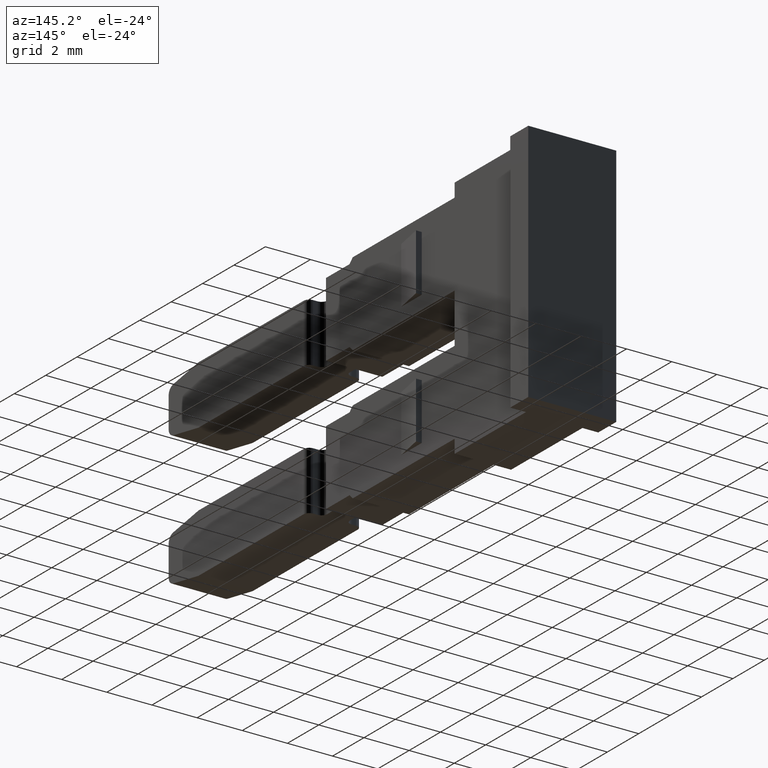
[diagram: clean part render]
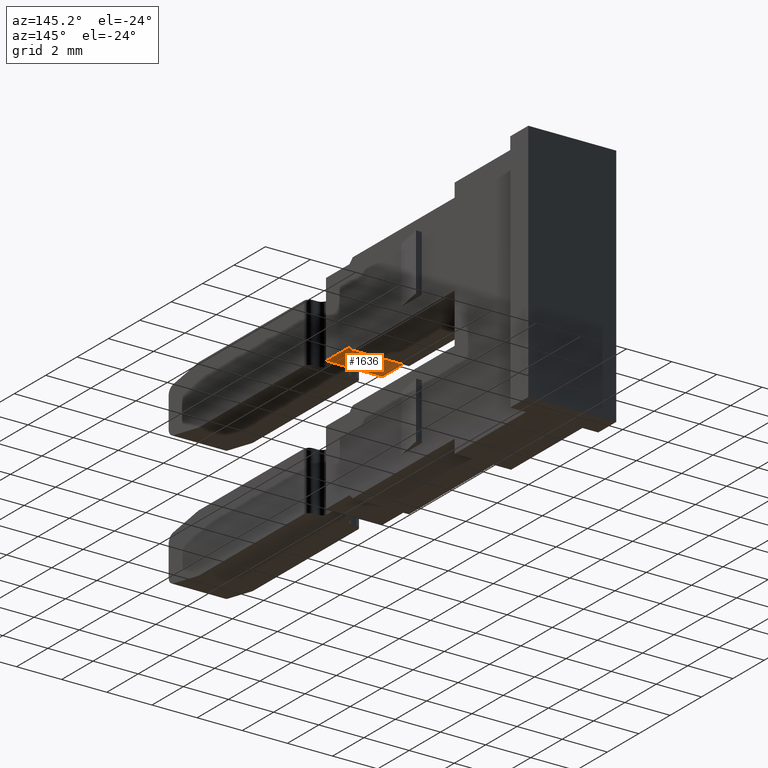
[diagram: same view with one face highlighted and labeled with its STEP entity id]
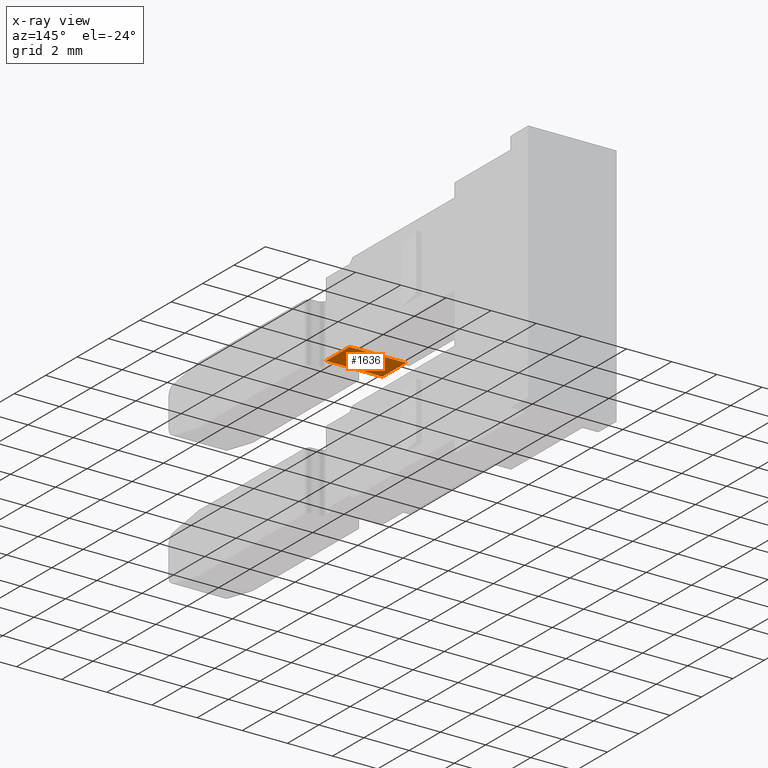
[diagram: x-ray of the same camera — body ghosted, the highlighted face saturated]
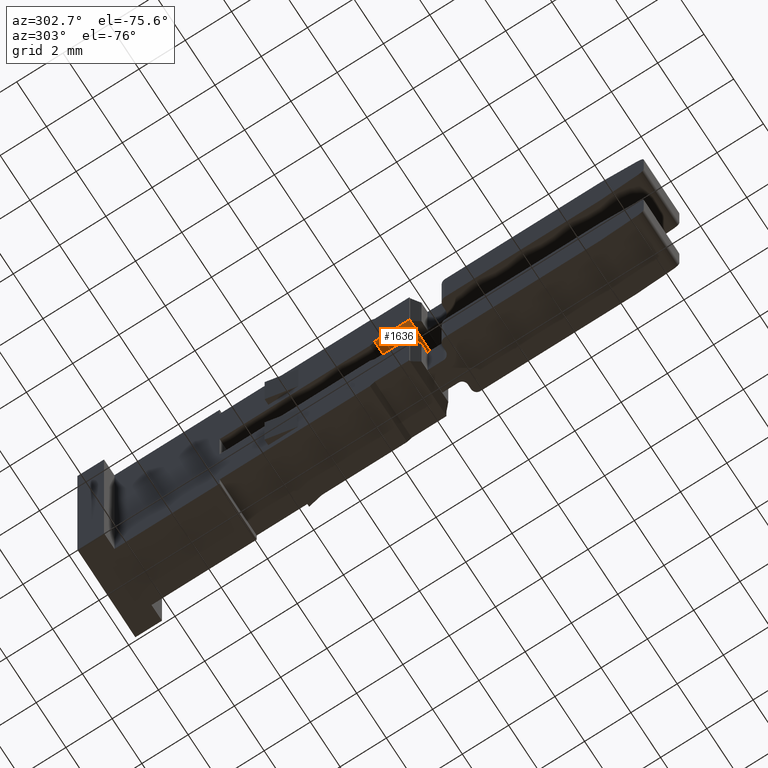
[diagram: same view with one face highlighted and labeled with its STEP entity id]
A machine part, auxiliary view. The second image highlights one B-rep face of the part: STEP entity #1636.
The next image is the same camera in x-ray: the body ghosted, the highlighted face saturated — about 0% of this face is hidden behind the body in this view.
A second angle (auxiliary view) of the same face is appended — the face is thin or edge-on in the first view.
In plain terms, the highlighted planar face has unit normal (-0, 0, 1).
Its self-contained STEP definition (entity closure, byte-faithful):
#46 = VECTOR ( 'NONE', #2695, 1000.000000000000000 ) ;
#58 = VECTOR ( 'NONE', #2689, 1000.000000000000000 ) ;
#60 = VECTOR ( 'NONE', #1714, 1000.000000000000000 ) ;
#90 = VECTOR ( 'NONE', #1702, 1000.000000000000000 ) ;
#92 = VECTOR ( 'NONE', #1711, 1000.000000000000000 ) ;
#307 = AXIS2_PLACEMENT_3D ( 'NONE', #2838, #2839, #2840 ) ;
#394 = VECTOR ( 'NONE', #2511, 1000.000000000000000 ) ;
#420 = VERTEX_POINT ( 'NONE', #1144 ) ;
#425 = VERTEX_POINT ( 'NONE', #1136 ) ;
#445 = VERTEX_POINT ( 'NONE', #1181 ) ;
#454 = VERTEX_POINT ( 'NONE', #1201 ) ;
#464 = VERTEX_POINT ( 'NONE', #1194 ) ;
#513 = VERTEX_POINT ( 'NONE', #2346 ) ;
#541 = ORIENTED_EDGE ( 'NONE', *, *, #1425, .F. ) ;
#554 = ORIENTED_EDGE ( 'NONE', *, *, #1428, .F. ) ;
#556 = ORIENTED_EDGE ( 'NONE', *, *, #1416, .F. ) ;
#563 = ORIENTED_EDGE ( 'NONE', *, *, #1404, .T. ) ;
#578 = ORIENTED_EDGE ( 'NONE', *, *, #1422, .F. ) ;
#613 = ORIENTED_EDGE ( 'NONE', *, *, #1355, .T. ) ;
#862 = EDGE_LOOP ( 'NONE', ( #578, #613, #541, #556, #554, #563 ) ) ;
#1136 = CARTESIAN_POINT ( 'NONE',  ( 1456.769071211365800, 995.7926795375192300, -81.14999999999173500 ) ) ;
#1144 = CARTESIAN_POINT ( 'NONE',  ( 1456.818071211366000, 995.7926795375191200, -81.14999999999173500 ) ) ;
#1181 = CARTESIAN_POINT ( 'NONE',  ( 1459.267071211366300, 995.7926795375191200, -81.14999999999173500 ) ) ;
#1194 = CARTESIAN_POINT ( 'NONE',  ( 1459.218071211366600, 995.7926795375191200, -81.14999999999172100 ) ) ;
#1201 = CARTESIAN_POINT ( 'NONE',  ( 1459.267071211366300, 997.2946795375179400, -81.14999999999176300 ) ) ;
#1355 = EDGE_CURVE ( 'NONE', #513, #454, #2494, .T. ) ;
#1404 = EDGE_CURVE ( 'NONE', #420, #425, #2650, .T. ) ;
#1416 = EDGE_CURVE ( 'NONE', #464, #445, #2697, .T. ) ;
#1422 = EDGE_CURVE ( 'NONE', #513, #425, #2712, .T. ) ;
#1425 = EDGE_CURVE ( 'NONE', #445, #454, #1706, .T. ) ;
#1428 = EDGE_CURVE ( 'NONE', #420, #464, #1703, .T. ) ;
#1636 = ADVANCED_FACE ( 'NONE', ( #2859 ), #2861, .F. ) ;
#1669 = CARTESIAN_POINT ( 'NONE',  ( 1456.318071211366000, 995.7926795375192300, -81.14999999999173500 ) ) ;
#1686 = CARTESIAN_POINT ( 'NONE',  ( 1456.769071211365800, 995.7946795375190700, -81.14999999999173500 ) ) ;
#1688 = CARTESIAN_POINT ( 'NONE',  ( 1459.267071211366300, 995.7946795375190700, -81.14999999999172100 ) ) ;
#1702 = DIRECTION ( 'NONE',  ( -0.0000000000000000000, 1.000000000000000000, -3.397305977084603400E-014 ) ) ;
#1703 = LINE ( 'NONE', #1669, #92 ) ;
#1706 = LINE ( 'NONE', #1688, #90 ) ;
#1711 = DIRECTION ( 'NONE',  ( 1.000000000000000000, 1.748040814020423200E-028, 5.145373498328530300E-015 ) ) ;
#1714 = DIRECTION ( 'NONE',  ( 0.0000000000000000000, -1.000000000000000000, 3.397305977084603400E-014 ) ) ;
#2346 = CARTESIAN_POINT ( 'NONE',  ( 1456.769071211365800, 997.2946795375179400, -81.14999999999176300 ) ) ;
#2494 = LINE ( 'NONE', #2532, #394 ) ;
#2511 = DIRECTION ( 'NONE',  ( 1.000000000000000000, -6.279100699773944700E-016, -6.279100699773528600E-016 ) ) ;
#2532 = CARTESIAN_POINT ( 'NONE',  ( 1456.318071211366000, 997.2946795375179400, -81.14999999999170700 ) ) ;
#2650 = LINE ( 'NONE', #2654, #46 ) ;
#2654 = CARTESIAN_POINT ( 'NONE',  ( 1440.816346248100200, 995.7926795375191200, -81.14999999999173500 ) ) ;
#2689 = DIRECTION ( 'NONE',  ( 1.000000000000000000, 1.748040814020423200E-028, 5.145373498328530300E-015 ) ) ;
#2695 = DIRECTION ( 'NONE',  ( -1.000000000000000000, -4.377670678466085900E-015, 0.0000000000000000000 ) ) ;
#2697 = LINE ( 'NONE', #2705, #58 ) ;
#2705 = CARTESIAN_POINT ( 'NONE',  ( 1456.318071211366000, 995.7926795375191200, -81.14999999999173500 ) ) ;
#2712 = LINE ( 'NONE', #1686, #60 ) ;
#2838 = CARTESIAN_POINT ( 'NONE',  ( 1456.318071211366000, 995.7946795375190700, -81.14999999999173500 ) ) ;
#2839 = DIRECTION ( 'NONE',  ( -5.145373498328530300E-015, 3.397305977084603400E-014, 1.000000000000000000 ) ) ;
#2840 = DIRECTION ( 'NONE',  ( 0.0000000000000000000, -1.000000000000000000, 3.397305977084603400E-014 ) ) ;
#2859 = FACE_OUTER_BOUND ( 'NONE', #862, .T. ) ;
#2861 = PLANE ( 'NONE',  #307 ) ;